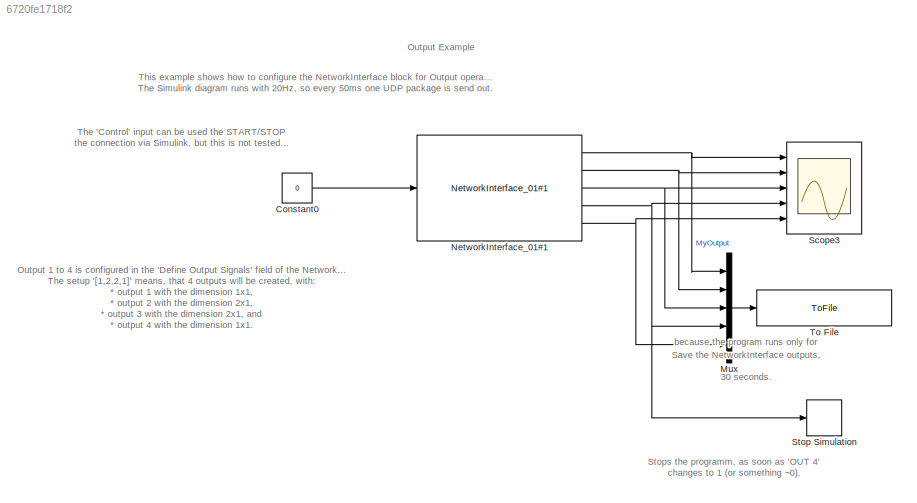
MODEL slx_6720fe1718f2
KIND model
CONFIG AbsTol = auto
CONFIG EnableMultiTasking = off
CONFIG FixedStep = 0.05
CONFIG MaxStep = auto
CONFIG MinStep = auto
CONFIG RelTol = 1e-3
CONFIG SampleTimeConstraint = Unconstrained
CONFIG Solver = FixedStepDiscrete
CONFIG SolverName = FixedStepDiscrete
CONFIG StartTime = 0.0
CONFIG StopTime = inf
BLOCK [Constant] Constant0
  OutDataTypeStr = double
  SampleTime = -1
  Value = 0
BLOCK [Mux] Mux
  DisplayOption = bar
  Inputs = 5
  Ports = [5, 1]
BLOCK [Reference] NetworkInterface_01#1  REF=LIB_NetwokInterface/NetworkInterface_01#1
  Ports = [1, 5]
  SourceBlock = LIB_NetwokInterface/NetworkInterface_01#1
  SourceType = NetworkInterface Block
BLOCK [Scope] Scope3
  NumInputPorts = 5
  Ports = [5]
  ScopeSpecificationString = Simulink.scopes.TimeScopeBlockCfg('CurrentConfiguration', extmgr.ConfigurationSet(extmgr.Configuration('Core','General UI',true),extmgr.Configuration('Core','Source UI',true),extmgr.Configuration('Sources','WiredSimulink',true,'DataLoggingLimitDataPoints',true,'DataLoggingSaveFormat','Array','DataLoggingDecimation','1','DataLoggingDecimateData',true),extmgr.Configuration('Visuals','Time Domain',tr...<+4259ch>
BLOCK [Stop] Stop Simulation
BLOCK [ToFile] To File
  Filename = SimulinkOutputData.mat
  MatrixName = data
  Ports = [1]
ANNOTATION (root): Output Example
ANNOTATION (root): Output 1 to 4 is configured in the 'Define Output Signals' field of the NetworkInface configuration dialog. The setup '[1,2,2,1]' means, that 4 outputs will be created, with: * output 1 with the dimension 1x1, * output 2 with the dimension 2x1, * output 3 with the dimension 2x1, and * output 4 with the dimension 1x1. If the setup is '0', no outputs will be available. Until the first UDP package is...<+505ch>
ANNOTATION (root): Save the NetworkInterface outputs, because the program runs only for 30 seconds.
ANNOTATION (root): Stops the programm, as soon as 'OUT 4' changes to 1 (or something ~0).
ANNOTATION (root): The 'Control' input can be used the START/STOP the connection via Simulink, but this is not tested...
ANNOTATION (root): This example shows how to configure the NetworkInterface block for Output operation. The Simulink diagram runs with 20Hz, so every 50ms one UDP package is send out.
LINE Constant0:1 -> NetworkInterface_01#1:1
LINE Mux:1 -> To File:1
NET NetworkInterface_01#1:1 -> Mux:1, Scope3:1
NET NetworkInterface_01#1:2 -> Mux:2, Scope3:2
NET NetworkInterface_01#1:3 -> Mux:3, Scope3:3
NET NetworkInterface_01#1:4 -> Mux:4, Scope3:4, Stop Simulation:1
NET NetworkInterface_01#1:5 -> Mux:5, Scope3:5
note: NET lines group one-source signal fan-out (src -> all destinations, sorted); 1:1 wires keep LINE
